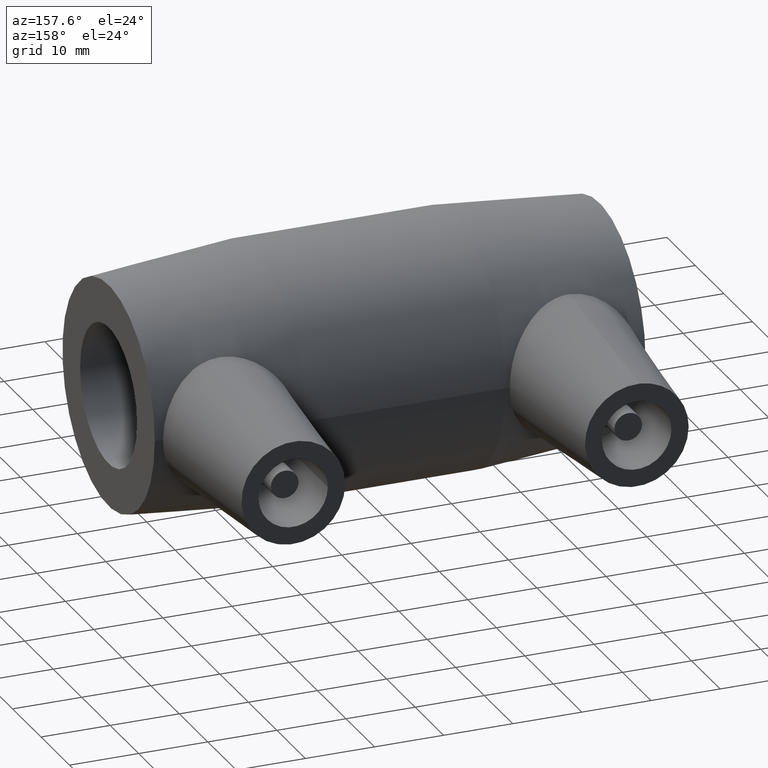
[diagram: clean part render]
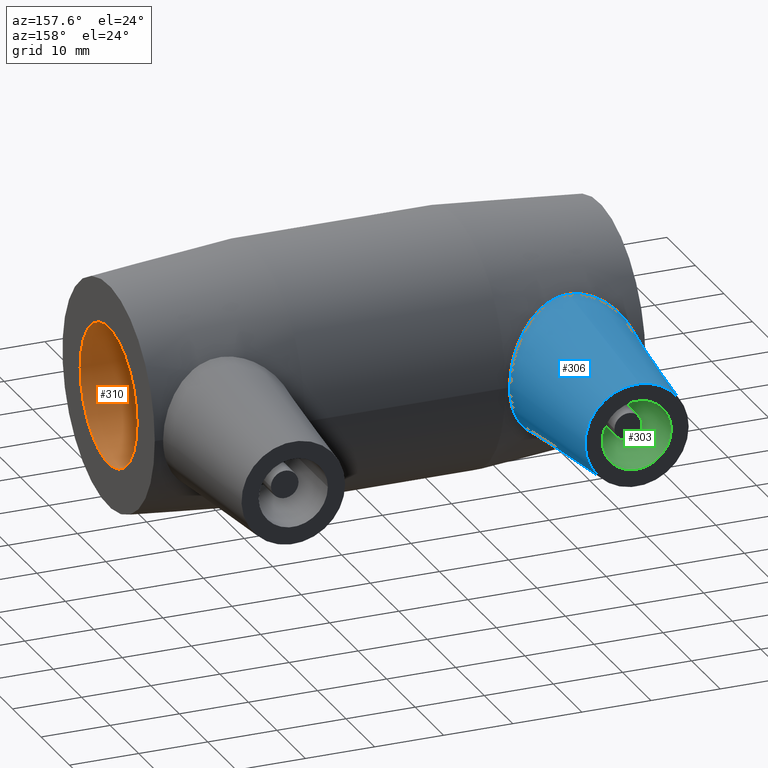
[diagram: same view with three faces highlighted in distinct colors, each labeled with its STEP entity id]
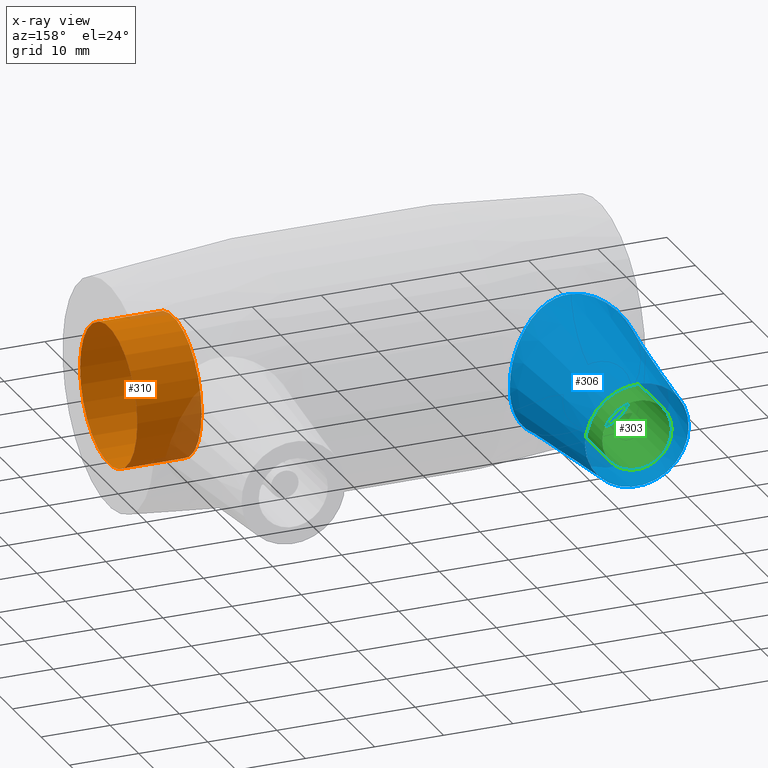
[diagram: x-ray of the same camera — body ghosted, the three highlighted faces saturated]
A machine part, auxiliary view with three faces highlighted in distinct colors.
The next image is the same camera in x-ray (body ghosted, the three faces saturated) — at least one of them is partly hidden behind the body in this view.
Their STEP definitions:

[orange] entity #310 — the highlighted cylindrical surface (bore or boss wall) has radius 10 mm, axis along (1, 0, 0).
#37=FACE_BOUND('',#119,.T.);
#56=CYLINDRICAL_SURFACE('',#354,9.99999999999999);
#76=FACE_OUTER_BOUND('',#118,.T.);
#118=EDGE_LOOP('',(#256));
#119=EDGE_LOOP('',(#257));
#158=CIRCLE('',#353,9.99999999999999);
#159=CIRCLE('',#355,9.99999999999999);
#186=VERTEX_POINT('',#609);
#187=VERTEX_POINT('',#612);
#214=EDGE_CURVE('',#186,#186,#158,.T.);
#215=EDGE_CURVE('',#187,#187,#159,.T.);
#256=ORIENTED_EDGE('',*,*,#215,.F.);
#257=ORIENTED_EDGE('',*,*,#214,.T.);
#310=ADVANCED_FACE('',(#76,#37),#56,.F.);
#353=AXIS2_PLACEMENT_3D('',#610,#437,#438);
#354=AXIS2_PLACEMENT_3D('',#611,#439,#440);
#355=AXIS2_PLACEMENT_3D('',#613,#441,#442);
#437=DIRECTION('center_axis',(1.,1.83697019872103E-16,0.));
#438=DIRECTION('ref_axis',(0.,0.,-1.));
#439=DIRECTION('center_axis',(1.,1.83697019872103E-16,0.));
#440=DIRECTION('ref_axis',(-1.96131485542617E-16,1.,0.));
#441=DIRECTION('center_axis',(1.,1.83697019872103E-16,0.));
#442=DIRECTION('ref_axis',(0.,0.,-1.));
#609=CARTESIAN_POINT('',(35.5,10.,0.));
#610=CARTESIAN_POINT('Origin',(35.5,1.30424884109193E-14,0.));
#611=CARTESIAN_POINT('Origin',(30.8333333333333,1.21852356515162E-14,0.));
#612=CARTESIAN_POINT('',(26.1666666666667,10.,0.));
#613=CARTESIAN_POINT('Origin',(26.1666666666667,1.1327982892113E-14,0.));

[blue] entity #306 — the highlighted conical surface has half-angle 6 deg.
#16=B_SPLINE_CURVE_WITH_KNOTS('',3,(#562,#563,#564,#565,#566,#567,#568,
#569,#570,#571,#572,#573,#574,#575,#576,#577,#578,#579,#580,#581,#582,#583,
#584,#585,#586,#587,#588,#589,#590,#591,#592,#593,#594,#595,#596,#597,#598,
#599),.UNSPECIFIED.,.T.,.F.,(4,2,2,2,2,2,2,2,2,2,2,2,2,2,2,2,2,2,4),(0.,
0.185299201020155,0.370598402040309,0.741196804080619,1.11369570266722,
1.48619460125382,1.85869349984042,2.23119239842702,2.60179080046733,2.78709000148748,
2.97238920250763,3.3877355594393,3.80308191637097,4.19848920143802,4.59389648650506,
4.98930377157211,5.38471105663916,5.80005741357083,6.2154037705025),
 .UNSPECIFIED.);
#18=CONICAL_SURFACE('',#346,7.5,6.);
#32=FACE_BOUND('',#110,.T.);
#72=FACE_OUTER_BOUND('',#109,.T.);
#109=EDGE_LOOP('',(#247));
#110=EDGE_LOOP('',(#248));
#154=CIRCLE('',#345,7.5);
#181=VERTEX_POINT('',#558);
#182=VERTEX_POINT('',#561);
#209=EDGE_CURVE('',#181,#181,#154,.T.);
#210=EDGE_CURVE('',#182,#182,#16,.T.);
#247=ORIENTED_EDGE('',*,*,#209,.T.);
#248=ORIENTED_EDGE('',*,*,#210,.F.);
#306=ADVANCED_FACE('',(#72,#32),#18,.T.);
#345=AXIS2_PLACEMENT_3D('',#559,#421,#422);
#346=AXIS2_PLACEMENT_3D('',#560,#423,#424);
#421=DIRECTION('center_axis',(0.,-1.,0.));
#422=DIRECTION('ref_axis',(1.,0.,0.));
#423=DIRECTION('center_axis',(0.,-1.,0.));
#424=DIRECTION('ref_axis',(1.,0.,0.));
#558=CARTESIAN_POINT('',(-32.35,39.,9.18485099360515E-16));
#559=CARTESIAN_POINT('Origin',(-24.85,39.,0.));
#560=CARTESIAN_POINT('Origin',(-24.85,39.,0.));
#561=CARTESIAN_POINT('',(-25.4400773461064,13.7225999164325,10.139606456612));
#562=CARTESIAN_POINT('Ctrl Pts',(-25.4400773461065,13.7225999164326,10.139606456612));
#563=CARTESIAN_POINT('Ctrl Pts',(-26.0554848061283,13.6801755537237,10.1082591649427));
#564=CARTESIAN_POINT('Ctrl Pts',(-26.6836558126022,13.6833117082209,10.0143419986184));
#565=CARTESIAN_POINT('Ctrl Pts',(-27.917326713401,13.7808855108945,9.69703784869612));
#566=CARTESIAN_POINT('Ctrl Pts',(-28.5228890839462,13.8749109819528,9.47376717065599));
#567=CARTESIAN_POINT('Ctrl Pts',(-30.2449859089782,14.2491836060499,8.63497623960071));
#568=CARTESIAN_POINT('Ctrl Pts',(-31.267289519206,14.6192269678355,7.84129932997885));
#569=CARTESIAN_POINT('Ctrl Pts',(-32.8714283514107,15.2890173803577,6.07675864335825));
#570=CARTESIAN_POINT('Ctrl Pts',(-33.5704214796696,15.6398730455991,4.97385128769273));
#571=CARTESIAN_POINT('Ctrl Pts',(-34.5051770921332,16.1304111960584,2.55707376897077));
#572=CARTESIAN_POINT('Ctrl Pts',(-34.7395254991271,16.2651835286462,1.24166299528867));
#573=CARTESIAN_POINT('Ctrl Pts',(-34.7395254991271,16.2651835286462,-1.24166299528866));
#574=CARTESIAN_POINT('Ctrl Pts',(-34.5051770921332,16.1304111960584,-2.55707376897077));
#575=CARTESIAN_POINT('Ctrl Pts',(-33.5704214796697,15.6398730455991,-4.97385128769272));
#576=CARTESIAN_POINT('Ctrl Pts',(-32.8714283514107,15.2890173803577,-6.07675864335825));
#577=CARTESIAN_POINT('Ctrl Pts',(-31.267289519206,14.6192269678355,-7.84129932997885));
#578=CARTESIAN_POINT('Ctrl Pts',(-30.2449859089782,14.2491836060499,-8.6349762396007));
#579=CARTESIAN_POINT('Ctrl Pts',(-28.5228890839462,13.8749109819528,-9.47376717065599));
#580=CARTESIAN_POINT('Ctrl Pts',(-27.917326713401,13.7808855108945,-9.69703784869612));
#581=CARTESIAN_POINT('Ctrl Pts',(-26.6836558126022,13.6833117082209,-10.0143419986184));
#582=CARTESIAN_POINT('Ctrl Pts',(-26.0554848061283,13.6801755537237,-10.1082591649427));
#583=CARTESIAN_POINT('Ctrl Pts',(-24.0606475097046,13.81769371284,-10.2098711060158));
#584=CARTESIAN_POINT('Ctrl Pts',(-22.6489616694074,14.1614685227023,-9.96355181723278));
#585=CARTESIAN_POINT('Ctrl Pts',(-20.1010772865265,15.0941052828797,-8.92144372205494));
#586=CARTESIAN_POINT('Ctrl Pts',(-18.959366888647,15.6672467928001,-8.12512863328076));
#587=CARTESIAN_POINT('Ctrl Pts',(-17.1958170252626,16.6363915937125,-6.32118237547666));
#588=CARTESIAN_POINT('Ctrl Pts',(-16.4332411469822,17.1081087825257,-5.20036181057903));
#589=CARTESIAN_POINT('Ctrl Pts',(-15.4029047925954,17.7651306421856,-2.69984050890149));
#590=CARTESIAN_POINT('Ctrl Pts',(-15.1370717220362,17.9453938523969,-1.31802428355683));
#591=CARTESIAN_POINT('Ctrl Pts',(-15.1370717220362,17.9453938523969,1.31802428355682));
#592=CARTESIAN_POINT('Ctrl Pts',(-15.4029047925954,17.7651306421856,2.69984050890149));
#593=CARTESIAN_POINT('Ctrl Pts',(-16.4332411469822,17.1081087825257,5.20036181057902));
#594=CARTESIAN_POINT('Ctrl Pts',(-17.1958170252626,16.6363915937125,6.32118237547666));
#595=CARTESIAN_POINT('Ctrl Pts',(-18.959366888647,15.6672467928001,8.12512863328075));
#596=CARTESIAN_POINT('Ctrl Pts',(-20.1010772865265,15.0941052828797,8.92144372205493));
#597=CARTESIAN_POINT('Ctrl Pts',(-22.6489616694074,14.1614685227023,9.96355181723278));
#598=CARTESIAN_POINT('Ctrl Pts',(-24.0606475097046,13.81769371284,10.2098711060158));
#599=CARTESIAN_POINT('Ctrl Pts',(-25.4400773461065,13.7225999164326,10.139606456612));

[green] entity #303 — the highlighted cylindrical surface (bore or boss wall) has radius 5 mm, axis along (0, -1, 0).
#29=FACE_BOUND('',#104,.T.);
#54=CYLINDRICAL_SURFACE('',#340,5.);
#69=FACE_OUTER_BOUND('',#103,.T.);
#103=EDGE_LOOP('',(#241));
#104=EDGE_LOOP('',(#242));
#152=CIRCLE('',#341,5.);
#153=CIRCLE('',#342,5.);
#179=VERTEX_POINT('',#552);
#180=VERTEX_POINT('',#554);
#207=EDGE_CURVE('',#179,#179,#152,.T.);
#208=EDGE_CURVE('',#180,#180,#153,.T.);
#241=ORIENTED_EDGE('',*,*,#207,.T.);
#242=ORIENTED_EDGE('',*,*,#208,.F.);
#303=ADVANCED_FACE('',(#69,#29),#54,.F.);
#340=AXIS2_PLACEMENT_3D('',#551,#411,#412);
#341=AXIS2_PLACEMENT_3D('',#553,#413,#414);
#342=AXIS2_PLACEMENT_3D('',#555,#415,#416);
#411=DIRECTION('center_axis',(0.,-1.,0.));
#412=DIRECTION('ref_axis',(-1.,0.,0.));
#413=DIRECTION('center_axis',(0.,-1.,0.));
#414=DIRECTION('ref_axis',(-1.,0.,0.));
#415=DIRECTION('center_axis',(0.,-1.,0.));
#416=DIRECTION('ref_axis',(-1.,0.,0.));
#551=CARTESIAN_POINT('Origin',(-24.85,39.,0.));
#552=CARTESIAN_POINT('',(-19.85,25.,-6.12323399573677E-16));
#553=CARTESIAN_POINT('Origin',(-24.85,25.,0.));
#554=CARTESIAN_POINT('',(-19.85,39.,-6.12323399573677E-16));
#555=CARTESIAN_POINT('Origin',(-24.85,39.,0.));